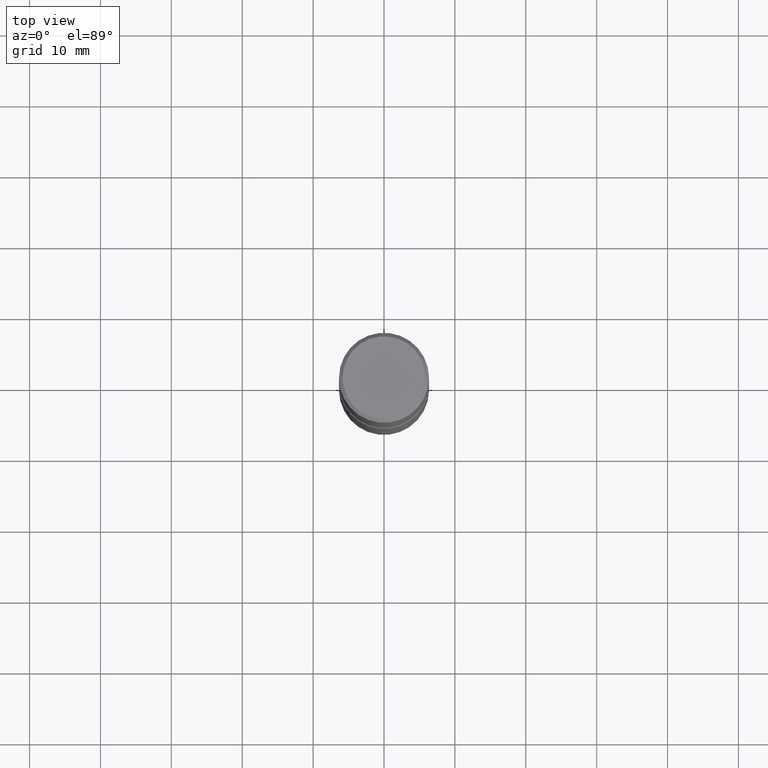
[diagram: clean part render]
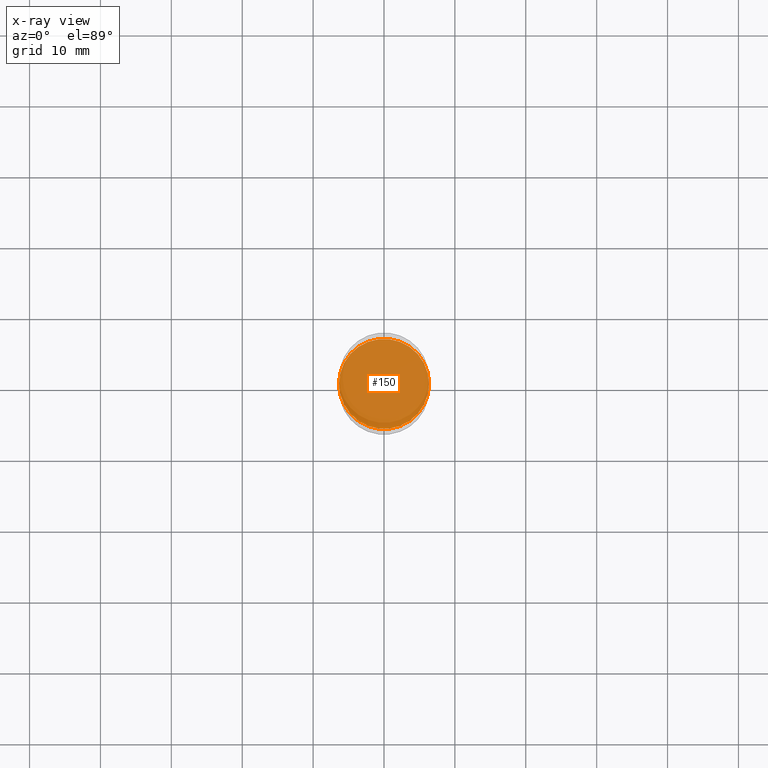
[diagram: x-ray — body ghosted, one internal face saturated and labeled with its STEP entity id]
A machine part, top view, then the same camera in x-ray: the body is ghosted and one INTERNAL B-rep face — a face not visible from any outside direction — is saturated and labeled: STEP entity #150.
In plain terms, the highlighted planar face has unit normal (0, -0, -1).
Its self-contained STEP definition (entity closure, byte-faithful):
#11 = AXIS2_PLACEMENT_3D ( 'NONE', #319, #61, #360 ) ;
#16 = DIRECTION ( 'NONE',  ( 1.000000000000000000, -6.982962677686268288E-15, 0.000000000000000000 ) ) ;
#47 = PLANE ( 'NONE',  #378 ) ;
#61 = DIRECTION ( 'NONE',  ( -2.445468806185136597E-29, 3.491481338843145583E-15, 1.000000000000000000 ) ) ;
#96 = CARTESIAN_POINT ( 'NONE',  ( -0.2500000000000004996, -8.488598296798597572E-15, -2.000000000000000444 ) ) ;
#103 = DIRECTION ( 'NONE',  ( -2.445468806185136597E-29, 3.491481338843145583E-15, 1.000000000000000000 ) ) ;
#150 = ADVANCED_FACE ( 'NONE', ( #495 ), #47, .F. ) ;
#198 = CARTESIAN_POINT ( 'NONE',  ( 0.2500000000000004996, -8.728703347107863365E-15, -2.000000000000000444 ) ) ;
#213 = DIRECTION ( 'NONE',  ( 2.438088387897960049E-29, -3.491481338843145188E-15, -1.000000000000000000 ) ) ;
#231 = CIRCLE ( 'NONE', #11, 0.2500000000000004996 ) ;
#248 = CIRCLE ( 'NONE', #350, 0.2500000000000004996 ) ;
#304 = EDGE_CURVE ( 'NONE', #474, #382, #231, .T. ) ;
#317 = ORIENTED_EDGE ( 'NONE', *, *, #353, .T. ) ;
#319 = CARTESIAN_POINT ( 'NONE',  ( 4.890937612370274875E-29, -6.982962677686292743E-15, -2.000000000000000444 ) ) ;
#350 = AXIS2_PLACEMENT_3D ( 'NONE', #541, #103, #16 ) ;
#353 = EDGE_CURVE ( 'NONE', #382, #474, #248, .T. ) ;
#360 = DIRECTION ( 'NONE',  ( 1.000000000000000000, -6.982962677686268288E-15, 0.000000000000000000 ) ) ;
#378 = AXIS2_PLACEMENT_3D ( 'NONE', #442, #213, #505 ) ;
#382 = VERTEX_POINT ( 'NONE', #96 ) ;
#392 = EDGE_LOOP ( 'NONE', ( #527, #317 ) ) ;
#442 = CARTESIAN_POINT ( 'NONE',  ( 1.838714799431134984E-29, -1.135391946754910364E-14, -2.000000000000000444 ) ) ;
#474 = VERTEX_POINT ( 'NONE', #198 ) ;
#495 = FACE_OUTER_BOUND ( 'NONE', #392, .T. ) ;
#505 = DIRECTION ( 'NONE',  ( -1.000000000000000000, 6.982962677686265922E-15, -4.876176775795935793E-29 ) ) ;
#527 = ORIENTED_EDGE ( 'NONE', *, *, #304, .T. ) ;
#541 = CARTESIAN_POINT ( 'NONE',  ( 4.890937612370274875E-29, -6.982962677686292743E-15, -2.000000000000000444 ) ) ;